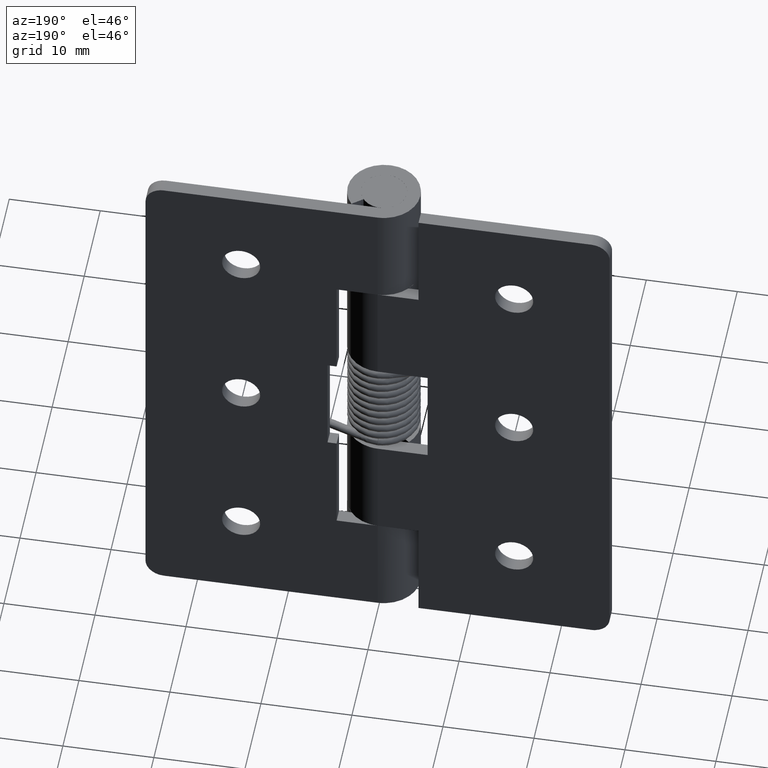
[diagram: clean part render]
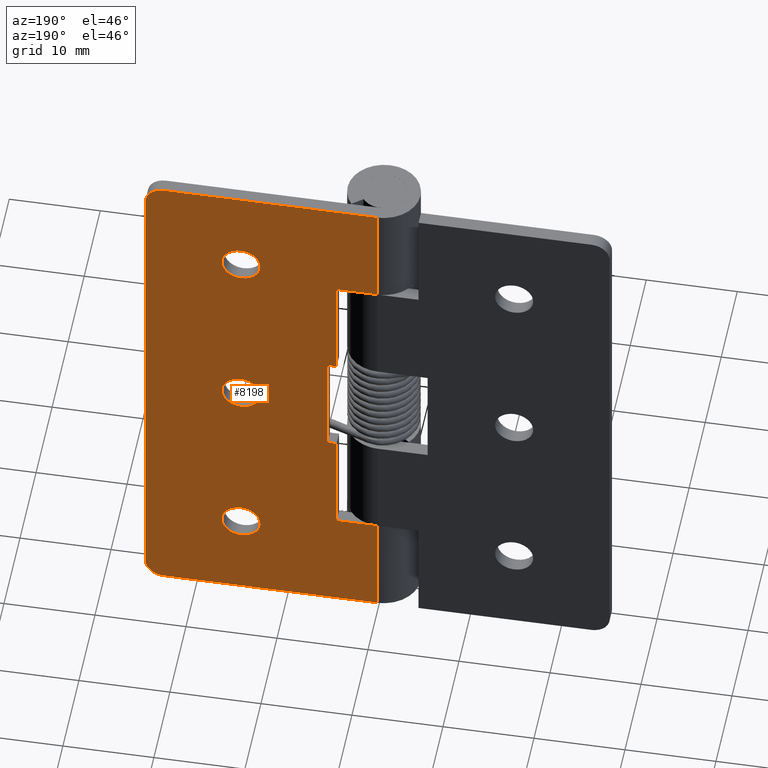
[diagram: same view with one face highlighted and labeled with its STEP entity id]
A machine part, auxiliary view. The second image highlights one B-rep face of the part: STEP entity #8198.
In plain terms, the highlighted face is a freeform B-spline surface patch.
Its self-contained STEP definition (entity closure, byte-faithful):
#6852=CARTESIAN_POINT('',(17.085320005343259,4.0,10.247871892951160));
#6853=VERTEX_POINT('',#6852);
#6859=CARTESIAN_POINT('',(15.0,4.0,7.900000000000000));
#6860=VERTEX_POINT('',#6859);
#6861=CARTESIAN_POINT('',(17.085320005343259,4.000000000000000,10.247871892951157));
#6862=CARTESIAN_POINT('',(17.099999999999998,4.000000000000001,10.124370651442796));
#6863=CARTESIAN_POINT('',(17.100000000000001,4.0,10.0));
#6864=CARTESIAN_POINT('',(17.099999999999994,4.000000000000000,7.900000000000000));
#6865=CARTESIAN_POINT('',(15.0,4.0,7.900000000000000));
#6873=(BOUNDED_CURVE()B_SPLINE_CURVE(2,(#6861,#6862,#6863,#6864,#6865),.UNSPECIFIED.,.F.,.U.)B_SPLINE_CURVE_WITH_KNOTS((3,2,3),(0.229562473487771,0.250000000000000,0.500000000000000),.UNSPECIFIED.)CURVE()GEOMETRIC_REPRESENTATION_ITEM()RATIONAL_B_SPLINE_CURVE((0.956026754133252,0.976055948300991,1.0,0.707106781186548,1.0))REPRESENTATION_ITEM(''));
#6874=EDGE_CURVE('',#6853,#6860,#6873,.T.);
#6876=CARTESIAN_POINT('',(12.903916685122450,4.0,9.871801961494359));
#6877=VERTEX_POINT('',#6876);
#6878=CARTESIAN_POINT('',(15.0,4.0,7.900000000000000));
#6879=CARTESIAN_POINT('',(13.024513582193929,4.0,7.900000000000001));
#6880=CARTESIAN_POINT('',(12.903916685122438,4.0,9.871801961494359));
#6888=(BOUNDED_CURVE()B_SPLINE_CURVE(2,(#6878,#6879,#6880),.UNSPECIFIED.,.F.,.U.)B_SPLINE_CURVE_WITH_KNOTS((3,3),(0.500000000000000,0.739333282833585),.UNSPECIFIED.)CURVE()GEOMETRIC_REPRESENTATION_ITEM()RATIONAL_B_SPLINE_CURVE((1.0,0.719603617686723,0.976072728763028))REPRESENTATION_ITEM(''));
#6889=EDGE_CURVE('',#6860,#6877,#6888,.T.);
#6963=CARTESIAN_POINT('',(15.0,4.0,12.100000000000000));
#6964=VERTEX_POINT('',#6963);
#6965=CARTESIAN_POINT('',(12.903916685122438,4.0,9.871801961494359));
#6966=CARTESIAN_POINT('',(12.900000000000004,4.000000000000000,9.935841149791390));
#6967=CARTESIAN_POINT('',(12.900000000000000,4.0,10.0));
#6968=CARTESIAN_POINT('',(12.900000000000002,4.000000000000000,12.099999999999998));
#6969=CARTESIAN_POINT('',(15.0,4.0,12.100000000000000));
#6977=(BOUNDED_CURVE()B_SPLINE_CURVE(2,(#6965,#6966,#6967,#6968,#6969),.UNSPECIFIED.,.F.,.U.)B_SPLINE_CURVE_WITH_KNOTS((3,2,3),(0.739333282833585,0.750000000000000,1.0),.UNSPECIFIED.)CURVE()GEOMETRIC_REPRESENTATION_ITEM()RATIONAL_B_SPLINE_CURVE((0.976072728763028,0.987503163499825,1.0,0.707106781186548,1.0))REPRESENTATION_ITEM(''));
#6978=EDGE_CURVE('',#6877,#6964,#6977,.T.);
#6980=CARTESIAN_POINT('',(15.0,4.0,12.100000000000000));
#6981=CARTESIAN_POINT('',(16.865166504188078,4.000000000000001,12.099999999999998));
#6982=CARTESIAN_POINT('',(17.085320005343263,4.0,10.247871892951157));
#6990=(BOUNDED_CURVE()B_SPLINE_CURVE(2,(#6980,#6981,#6982),.UNSPECIFIED.,.F.,.U.)B_SPLINE_CURVE_WITH_KNOTS((3,3),(0.0,0.229562473487771),.UNSPECIFIED.)CURVE()GEOMETRIC_REPRESENTATION_ITEM()RATIONAL_B_SPLINE_CURVE((1.0,0.731050832885556,0.956026754133252))REPRESENTATION_ITEM(''));
#6991=EDGE_CURVE('',#6964,#6853,#6990,.T.);
#7042=CARTESIAN_POINT('',(17.085320005343259,4.0,30.247856892951159));
#7043=VERTEX_POINT('',#7042);
#7049=CARTESIAN_POINT('',(15.0,4.0,27.899985000000001));
#7050=VERTEX_POINT('',#7049);
#7051=CARTESIAN_POINT('',(17.085320005343263,4.000000000000000,30.247856892951159));
#7052=CARTESIAN_POINT('',(17.099999999999998,4.0,30.124355651442791));
#7053=CARTESIAN_POINT('',(17.100000000000001,4.0,29.999984999999999));
#7054=CARTESIAN_POINT('',(17.099999999999994,4.000000000000000,27.899985000000001));
#7055=CARTESIAN_POINT('',(15.0,4.0,27.899985000000001));
#7063=(BOUNDED_CURVE()B_SPLINE_CURVE(2,(#7051,#7052,#7053,#7054,#7055),.UNSPECIFIED.,.F.,.U.)B_SPLINE_CURVE_WITH_KNOTS((3,2,3),(0.229562473487771,0.250000000000000,0.500000000000000),.UNSPECIFIED.)CURVE()GEOMETRIC_REPRESENTATION_ITEM()RATIONAL_B_SPLINE_CURVE((0.956026754133252,0.976055948300991,1.0,0.707106781186548,1.0))REPRESENTATION_ITEM(''));
#7064=EDGE_CURVE('',#7043,#7050,#7063,.T.);
#7066=CARTESIAN_POINT('',(12.903916685122450,4.0,29.871786961494362));
#7067=VERTEX_POINT('',#7066);
#7068=CARTESIAN_POINT('',(15.0,4.0,27.899985000000001));
#7069=CARTESIAN_POINT('',(13.024513582193928,4.0,27.899984999999997));
#7070=CARTESIAN_POINT('',(12.903916685122443,4.0,29.871786961494362));
#7078=(BOUNDED_CURVE()B_SPLINE_CURVE(2,(#7068,#7069,#7070),.UNSPECIFIED.,.F.,.U.)B_SPLINE_CURVE_WITH_KNOTS((3,3),(0.500000000000000,0.739333282833585),.UNSPECIFIED.)CURVE()GEOMETRIC_REPRESENTATION_ITEM()RATIONAL_B_SPLINE_CURVE((1.0,0.719603617686723,0.976072728763027))REPRESENTATION_ITEM(''));
#7079=EDGE_CURVE('',#7050,#7067,#7078,.T.);
#7153=CARTESIAN_POINT('',(15.0,4.0,32.099984999999997));
#7154=VERTEX_POINT('',#7153);
#7155=CARTESIAN_POINT('',(12.903916685122446,4.0,29.871786961494358));
#7156=CARTESIAN_POINT('',(12.899999999999997,4.0,29.935826149791389));
#7157=CARTESIAN_POINT('',(12.900000000000000,4.0,29.999984999999999));
#7158=CARTESIAN_POINT('',(12.900000000000002,4.000000000000000,32.099985000000004));
#7159=CARTESIAN_POINT('',(15.0,4.0,32.099984999999997));
#7167=(BOUNDED_CURVE()B_SPLINE_CURVE(2,(#7155,#7156,#7157,#7158,#7159),.UNSPECIFIED.,.F.,.U.)B_SPLINE_CURVE_WITH_KNOTS((3,2,3),(0.739333282833585,0.750000000000000,1.0),.UNSPECIFIED.)CURVE()GEOMETRIC_REPRESENTATION_ITEM()RATIONAL_B_SPLINE_CURVE((0.976072728763027,0.987503163499824,1.0,0.707106781186548,1.0))REPRESENTATION_ITEM(''));
#7168=EDGE_CURVE('',#7067,#7154,#7167,.T.);
#7170=CARTESIAN_POINT('',(15.0,4.0,32.099984999999997));
#7171=CARTESIAN_POINT('',(16.865166504188092,4.0,32.099984999999997));
#7172=CARTESIAN_POINT('',(17.085320005343263,4.000000000000000,30.247856892951159));
#7180=(BOUNDED_CURVE()B_SPLINE_CURVE(2,(#7170,#7171,#7172),.UNSPECIFIED.,.F.,.U.)B_SPLINE_CURVE_WITH_KNOTS((3,3),(0.0,0.229562473487771),.UNSPECIFIED.)CURVE()GEOMETRIC_REPRESENTATION_ITEM()RATIONAL_B_SPLINE_CURVE((1.0,0.731050832885556,0.956026754133252))REPRESENTATION_ITEM(''));
#7181=EDGE_CURVE('',#7154,#7043,#7180,.T.);
#7232=CARTESIAN_POINT('',(17.085320005343259,4.0,50.247856892951148));
#7233=VERTEX_POINT('',#7232);
#7239=CARTESIAN_POINT('',(15.0,4.0,47.899985000000001));
#7240=VERTEX_POINT('',#7239);
#7241=CARTESIAN_POINT('',(17.085320005343263,4.000000000000000,50.247856892951155));
#7242=CARTESIAN_POINT('',(17.100000000000005,4.000000000000000,50.124355651442784));
#7243=CARTESIAN_POINT('',(17.100000000000001,4.0,49.999985000000002));
#7244=CARTESIAN_POINT('',(17.099999999999994,4.000000000000000,47.899985000000015));
#7245=CARTESIAN_POINT('',(15.0,4.0,47.899985000000001));
#7253=(BOUNDED_CURVE()B_SPLINE_CURVE(2,(#7241,#7242,#7243,#7244,#7245),.UNSPECIFIED.,.F.,.U.)B_SPLINE_CURVE_WITH_KNOTS((3,2,3),(0.229562473487771,0.250000000000000,0.500000000000000),.UNSPECIFIED.)CURVE()GEOMETRIC_REPRESENTATION_ITEM()RATIONAL_B_SPLINE_CURVE((0.956026754133253,0.976055948300992,1.0,0.707106781186548,1.0))REPRESENTATION_ITEM(''));
#7254=EDGE_CURVE('',#7233,#7240,#7253,.T.);
#7256=CARTESIAN_POINT('',(12.903916685122450,4.0,49.871786961494351));
#7257=VERTEX_POINT('',#7256);
#7258=CARTESIAN_POINT('',(15.0,4.0,47.899985000000001));
#7259=CARTESIAN_POINT('',(13.024513582193935,4.000000000000001,47.899985000000001));
#7260=CARTESIAN_POINT('',(12.903916685122445,4.000000000000000,49.871786961494351));
#7268=(BOUNDED_CURVE()B_SPLINE_CURVE(2,(#7258,#7259,#7260),.UNSPECIFIED.,.F.,.U.)B_SPLINE_CURVE_WITH_KNOTS((3,3),(0.500000000000000,0.739333282833585),.UNSPECIFIED.)CURVE()GEOMETRIC_REPRESENTATION_ITEM()RATIONAL_B_SPLINE_CURVE((1.0,0.719603617686724,0.976072728763026))REPRESENTATION_ITEM(''));
#7269=EDGE_CURVE('',#7240,#7257,#7268,.T.);
#7343=CARTESIAN_POINT('',(15.0,4.0,52.099984999999997));
#7344=VERTEX_POINT('',#7343);
#7345=CARTESIAN_POINT('',(12.903916685122448,4.0,49.871786961494351));
#7346=CARTESIAN_POINT('',(12.899999999999999,4.000000000000001,49.935826149791389));
#7347=CARTESIAN_POINT('',(12.900000000000000,4.0,49.999985000000002));
#7348=CARTESIAN_POINT('',(12.900000000000002,4.000000000000000,52.099984999999990));
#7349=CARTESIAN_POINT('',(15.0,4.0,52.099984999999997));
#7357=(BOUNDED_CURVE()B_SPLINE_CURVE(2,(#7345,#7346,#7347,#7348,#7349),.UNSPECIFIED.,.F.,.U.)B_SPLINE_CURVE_WITH_KNOTS((3,2,3),(0.739333282833585,0.750000000000000,1.0),.UNSPECIFIED.)CURVE()GEOMETRIC_REPRESENTATION_ITEM()RATIONAL_B_SPLINE_CURVE((0.976072728763027,0.987503163499824,1.0,0.707106781186548,1.0))REPRESENTATION_ITEM(''));
#7358=EDGE_CURVE('',#7257,#7344,#7357,.T.);
#7360=CARTESIAN_POINT('',(15.0,4.0,52.099984999999997));
#7361=CARTESIAN_POINT('',(16.865166504188092,4.000000000000001,52.099984999999982));
#7362=CARTESIAN_POINT('',(17.085320005343267,4.0,50.247856892951148));
#7370=(BOUNDED_CURVE()B_SPLINE_CURVE(2,(#7360,#7361,#7362),.UNSPECIFIED.,.F.,.U.)B_SPLINE_CURVE_WITH_KNOTS((3,3),(0.0,0.229562473487771),.UNSPECIFIED.)CURVE()GEOMETRIC_REPRESENTATION_ITEM()RATIONAL_B_SPLINE_CURVE((1.0,0.731050832885556,0.956026754133253))REPRESENTATION_ITEM(''));
#7371=EDGE_CURVE('',#7344,#7233,#7370,.T.);
#7391=CARTESIAN_POINT('',(5.499999999999799,4.0,23.999984999999999));
#7392=VERTEX_POINT('',#7391);
#7398=CARTESIAN_POINT('',(4.499999999999799,4.0,23.999984999999999));
#7399=VERTEX_POINT('',#7398);
#7400=CARTESIAN_POINT('',(5.499999999999799,4.0,23.999984999999999));
#7401=CARTESIAN_POINT('',(4.499999999999799,4.0,23.999984999999999));
#7402=QUASI_UNIFORM_CURVE('',1,(#7400,#7401),.UNSPECIFIED.,.F.,.U.);
#7403=EDGE_CURVE('',#7392,#7399,#7402,.T.);
#7427=CARTESIAN_POINT('',(4.499999999999799,4.0,35.999985000000002));
#7428=VERTEX_POINT('',#7427);
#7434=CARTESIAN_POINT('',(5.499999999999799,4.0,35.999985000000002));
#7435=VERTEX_POINT('',#7434);
#7436=CARTESIAN_POINT('',(4.499999999999799,4.0,35.999985000000002));
#7437=CARTESIAN_POINT('',(5.499999999999799,4.0,35.999985000000002));
#7438=QUASI_UNIFORM_CURVE('',1,(#7436,#7437),.UNSPECIFIED.,.F.,.U.);
#7439=EDGE_CURVE('',#7428,#7435,#7438,.T.);
#7460=CARTESIAN_POINT('',(5.499999999999799,4.0,35.999985000000002));
#7461=CARTESIAN_POINT('',(5.499999999999799,4.0,23.999984999999999));
#7462=QUASI_UNIFORM_CURVE('',1,(#7460,#7461),.UNSPECIFIED.,.F.,.U.);
#7463=EDGE_CURVE('',#7435,#7392,#7462,.T.);
#7483=CARTESIAN_POINT('',(4.499999999999799,4.0,12.0));
#7484=VERTEX_POINT('',#7483);
#7490=CARTESIAN_POINT('',(0.0,4.0,12.0));
#7491=VERTEX_POINT('',#7490);
#7492=CARTESIAN_POINT('',(4.499999999999799,4.0,12.0));
#7493=CARTESIAN_POINT('',(0.0,4.0,12.0));
#7494=QUASI_UNIFORM_CURVE('',1,(#7492,#7493),.UNSPECIFIED.,.F.,.U.);
#7495=EDGE_CURVE('',#7484,#7491,#7494,.T.);
#7554=CARTESIAN_POINT('',(0.0,4.0,47.999985000000002));
#7555=VERTEX_POINT('',#7554);
#7575=CARTESIAN_POINT('',(4.499999999999799,4.0,47.999985000000002));
#7576=VERTEX_POINT('',#7575);
#7577=CARTESIAN_POINT('',(0.0,4.0,47.999985000000002));
#7578=CARTESIAN_POINT('',(4.499999999999799,4.0,47.999985000000002));
#7579=QUASI_UNIFORM_CURVE('',1,(#7577,#7578),.UNSPECIFIED.,.F.,.U.);
#7580=EDGE_CURVE('',#7555,#7576,#7579,.T.);
#7656=CARTESIAN_POINT('',(25.500000000000000,4.0,57.999985000000002));
#7657=VERTEX_POINT('',#7656);
#7663=CARTESIAN_POINT('',(23.500000000000000,4.0,59.999985000000002));
#7664=VERTEX_POINT('',#7663);
#7665=CARTESIAN_POINT('',(25.500000000000000,4.0,57.999985000000002));
#7666=CARTESIAN_POINT('',(25.500000000000007,4.000000000000000,59.999985000000002));
#7667=CARTESIAN_POINT('',(23.500000000000000,4.0,59.999985000000002));
#7675=(BOUNDED_CURVE()B_SPLINE_CURVE(2,(#7665,#7666,#7667),.UNSPECIFIED.,.F.,.U.)CURVE()GEOMETRIC_REPRESENTATION_ITEM()QUASI_UNIFORM_CURVE()RATIONAL_B_SPLINE_CURVE((1.0,0.707106781186548,1.0))REPRESENTATION_ITEM(''));
#7676=EDGE_CURVE('',#7657,#7664,#7675,.T.);
#7717=CARTESIAN_POINT('',(23.500000000000000,4.0,0.0));
#7718=VERTEX_POINT('',#7717);
#7724=CARTESIAN_POINT('',(25.500000000000000,4.0,2.0));
#7725=VERTEX_POINT('',#7724);
#7726=CARTESIAN_POINT('',(23.500000000000000,4.0,0.0));
#7727=CARTESIAN_POINT('',(25.500000000000007,4.000000000000000,0.0));
#7728=CARTESIAN_POINT('',(25.500000000000000,4.0,2.0));
#7736=(BOUNDED_CURVE()B_SPLINE_CURVE(2,(#7726,#7727,#7728),.UNSPECIFIED.,.F.,.U.)CURVE()GEOMETRIC_REPRESENTATION_ITEM()QUASI_UNIFORM_CURVE()RATIONAL_B_SPLINE_CURVE((1.0,0.707106781186548,1.0))REPRESENTATION_ITEM(''));
#7737=EDGE_CURVE('',#7718,#7725,#7736,.T.);
#7760=CARTESIAN_POINT('',(0.0,4.0,59.999985000000002));
#7761=VERTEX_POINT('',#7760);
#7762=CARTESIAN_POINT('',(0.0,4.0,59.999985000000002));
#7763=CARTESIAN_POINT('',(23.500000000000000,4.0,59.999985000000002));
#7764=QUASI_UNIFORM_CURVE('',1,(#7762,#7763),.UNSPECIFIED.,.F.,.U.);
#7765=EDGE_CURVE('',#7761,#7664,#7764,.T.);
#7858=CARTESIAN_POINT('',(0.0,4.0,0.0));
#7859=VERTEX_POINT('',#7858);
#7879=CARTESIAN_POINT('',(0.0,4.0,0.0));
#7880=CARTESIAN_POINT('',(23.500000000000000,4.0,0.0));
#7881=QUASI_UNIFORM_CURVE('',1,(#7879,#7880),.UNSPECIFIED.,.F.,.U.);
#7882=EDGE_CURVE('',#7859,#7718,#7881,.T.);
#7892=CARTESIAN_POINT('',(25.500000000000000,4.0,2.0));
#7893=CARTESIAN_POINT('',(25.500000000000000,4.0,57.999985000000002));
#7894=QUASI_UNIFORM_CURVE('',1,(#7892,#7893),.UNSPECIFIED.,.F.,.U.);
#7895=EDGE_CURVE('',#7725,#7657,#7894,.T.);
#8036=CARTESIAN_POINT('',(0.0,4.0,0.0));
#8037=CARTESIAN_POINT('',(0.0,4.0,12.0));
#8038=QUASI_UNIFORM_CURVE('',1,(#8036,#8037),.UNSPECIFIED.,.F.,.U.);
#8039=EDGE_CURVE('',#7859,#7491,#8038,.T.);
#8071=CARTESIAN_POINT('',(0.0,4.0,47.999985000000002));
#8072=CARTESIAN_POINT('',(0.0,4.0,59.999985000000002));
#8073=QUASI_UNIFORM_CURVE('',1,(#8071,#8072),.UNSPECIFIED.,.F.,.U.);
#8074=EDGE_CURVE('',#7555,#7761,#8073,.T.);
#8090=CARTESIAN_POINT('',(4.499999999999799,4.0,23.999984999999999));
#8091=CARTESIAN_POINT('',(4.499999999999799,4.0,12.0));
#8092=QUASI_UNIFORM_CURVE('',1,(#8090,#8091),.UNSPECIFIED.,.F.,.U.);
#8093=EDGE_CURVE('',#7399,#7484,#8092,.T.);
#8104=CARTESIAN_POINT('',(4.499999999999799,4.0,47.999985000000002));
#8105=CARTESIAN_POINT('',(4.499999999999799,4.0,35.999985000000002));
#8106=QUASI_UNIFORM_CURVE('',1,(#8104,#8105),.UNSPECIFIED.,.F.,.U.);
#8107=EDGE_CURVE('',#7576,#7428,#8106,.T.);
#8159=CARTESIAN_POINT('',(-1.273724950576050,4.0,62.996984134458387));
#8160=CARTESIAN_POINT('',(-1.273724950576050,4.0,-2.997000743783390));
#8161=CARTESIAN_POINT('',(26.773725634539360,4.0,62.996984134458387));
#8162=CARTESIAN_POINT('',(26.773725634539360,4.0,-2.997000743783390));
#8163=B_SPLINE_SURFACE_WITH_KNOTS('',1,1,((#8159,#8161),(#8160,#8162)),.UNSPECIFIED.,.F.,.F.,.U.,(2,2),(2,2),(0.0,65.993984878241776),(0.0,28.047450585115410),.UNSPECIFIED.);
#8164=ORIENTED_EDGE('',*,*,#7439,.F.);
#8165=ORIENTED_EDGE('',*,*,#8107,.F.);
#8166=ORIENTED_EDGE('',*,*,#7580,.F.);
#8167=ORIENTED_EDGE('',*,*,#8074,.T.);
#8168=ORIENTED_EDGE('',*,*,#7765,.T.);
#8169=ORIENTED_EDGE('',*,*,#7676,.F.);
#8170=ORIENTED_EDGE('',*,*,#7895,.F.);
#8171=ORIENTED_EDGE('',*,*,#7737,.F.);
#8172=ORIENTED_EDGE('',*,*,#7882,.F.);
#8173=ORIENTED_EDGE('',*,*,#8039,.T.);
#8174=ORIENTED_EDGE('',*,*,#7495,.F.);
#8175=ORIENTED_EDGE('',*,*,#8093,.F.);
#8176=ORIENTED_EDGE('',*,*,#7403,.F.);
#8177=ORIENTED_EDGE('',*,*,#7463,.F.);
#8178=EDGE_LOOP('',(#8164,#8165,#8166,#8167,#8168,#8169,#8170,#8171,#8172,#8173,#8174,#8175,#8176,#8177));
#8179=FACE_OUTER_BOUND('',#8178,.T.);
#8180=ORIENTED_EDGE('',*,*,#7269,.F.);
#8181=ORIENTED_EDGE('',*,*,#7254,.F.);
#8182=ORIENTED_EDGE('',*,*,#7371,.F.);
#8183=ORIENTED_EDGE('',*,*,#7358,.F.);
#8184=EDGE_LOOP('',(#8180,#8181,#8182,#8183));
#8185=FACE_BOUND('',#8184,.T.);
#8186=ORIENTED_EDGE('',*,*,#7079,.F.);
#8187=ORIENTED_EDGE('',*,*,#7064,.F.);
#8188=ORIENTED_EDGE('',*,*,#7181,.F.);
#8189=ORIENTED_EDGE('',*,*,#7168,.F.);
#8190=EDGE_LOOP('',(#8186,#8187,#8188,#8189));
#8191=FACE_BOUND('',#8190,.T.);
#8192=ORIENTED_EDGE('',*,*,#6889,.F.);
#8193=ORIENTED_EDGE('',*,*,#6874,.F.);
#8194=ORIENTED_EDGE('',*,*,#6991,.F.);
#8195=ORIENTED_EDGE('',*,*,#6978,.F.);
#8196=EDGE_LOOP('',(#8192,#8193,#8194,#8195));
#8197=FACE_BOUND('',#8196,.T.);
#8198=ADVANCED_FACE('',(#8179,#8185,#8191,#8197),#8163,.F.);